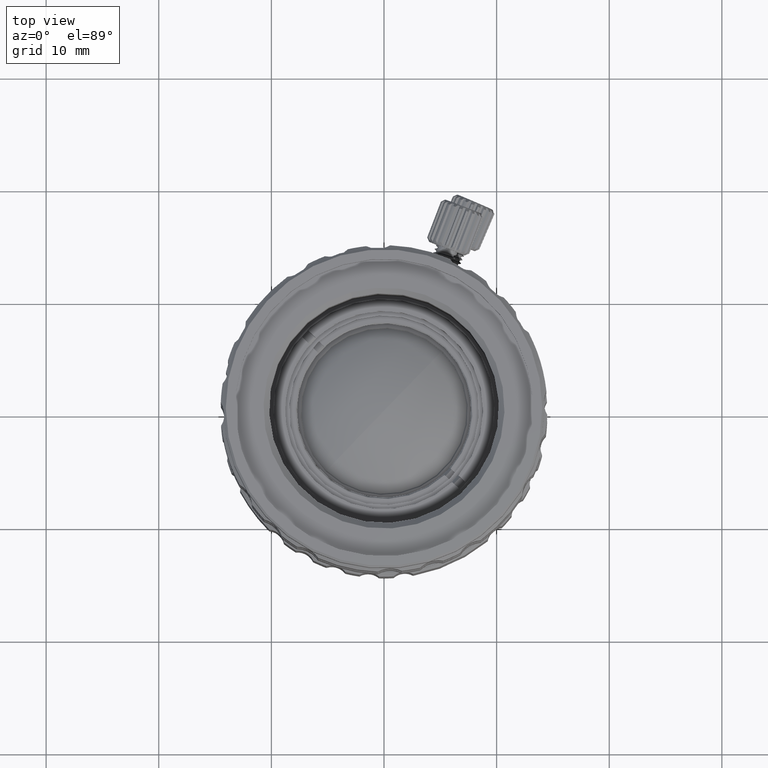
[diagram: clean part render]
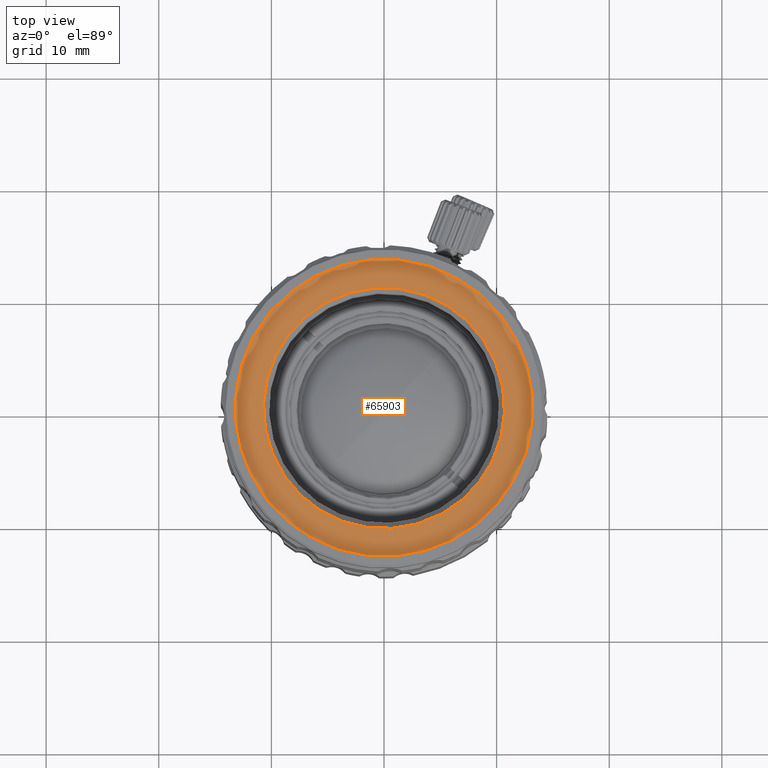
[diagram: same view with one face highlighted and labeled with its STEP entity id]
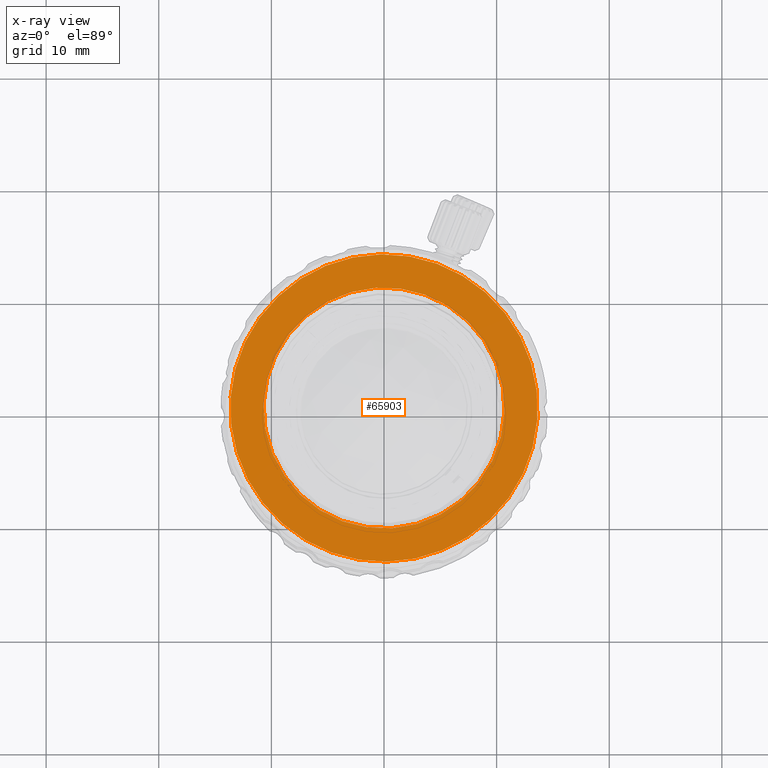
[diagram: x-ray of the same camera — body ghosted, the highlighted face saturated]
A machine part, top view. The second image highlights one B-rep face of the part: STEP entity #65903.
The next image is the same camera in x-ray: the body ghosted, the highlighted face saturated — about 0% of this face is hidden behind the body in this view.
In plain terms, the highlighted planar face has unit normal (0, 0, 1).
Its self-contained STEP definition (entity closure, byte-faithful):
#2006 = CARTESIAN_POINT ( 'NONE',  ( -2.949319707118331024, 10.28550014610863883, 43.11993545905000502 ) ) ;
#2516 = CARTESIAN_POINT ( 'NONE',  ( 0.000000000000000000, 0.000000000000000000, 43.11993545905000502 ) ) ;
#2764 = EDGE_CURVE ( 'NONE', #75610, #44852, #71857, .T. ) ;
#3057 = DIRECTION ( 'NONE',  ( 0.000000000000000000, 0.000000000000000000, -1.000000000000000000 ) ) ;
#5330 = CIRCLE ( 'NONE', #35245, 13.65000000000000036 ) ;
#5430 = EDGE_LOOP ( 'NONE', ( #51363, #42754 ) ) ;
#7056 = CIRCLE ( 'NONE', #74570, 10.69999999999999574 ) ;
#8770 = DIRECTION ( 'NONE',  ( 1.000000000000000000, 0.000000000000000000, 0.000000000000000000 ) ) ;
#10390 = ORIENTED_EDGE ( 'NONE', *, *, #13522, .F. ) ;
#13522 = EDGE_CURVE ( 'NONE', #17956, #40577, #70892, .T. ) ;
#14739 = PLANE ( 'NONE',  #74392 ) ;
#16141 = DIRECTION ( 'NONE',  ( 0.2756373558170110982, -0.9612616959383153414, 0.000000000000000000 ) ) ;
#17956 = VERTEX_POINT ( 'NONE', #64900 ) ;
#19350 = EDGE_CURVE ( 'NONE', #40577, #17956, #5330, .T. ) ;
#21253 = FACE_BOUND ( 'NONE', #5430, .T. ) ;
#21759 = EDGE_LOOP ( 'NONE', ( #22639, #10390 ) ) ;
#22639 = ORIENTED_EDGE ( 'NONE', *, *, #19350, .F. ) ;
#23903 = CARTESIAN_POINT ( 'NONE',  ( 2.949319707118332357, -10.28550014610863883, 43.11993545905000502 ) ) ;
#29151 = DIRECTION ( 'NONE',  ( 0.000000000000000000, 0.000000000000000000, 1.000000000000000000 ) ) ;
#34245 = DIRECTION ( 'NONE',  ( 0.000000000000000000, 0.000000000000000000, 1.000000000000000000 ) ) ;
#35245 = AXIS2_PLACEMENT_3D ( 'NONE', #50363, #3057, #45090 ) ;
#36816 = AXIS2_PLACEMENT_3D ( 'NONE', #39768, #29151, #16141 ) ;
#39563 = DIRECTION ( 'NONE',  ( 0.000000000000000000, 0.000000000000000000, 1.000000000000000000 ) ) ;
#39768 = CARTESIAN_POINT ( 'NONE',  ( 0.000000000000000000, 0.000000000000000000, 43.11993545905000502 ) ) ;
#39952 = DIRECTION ( 'NONE',  ( 0.2756373558170110982, -0.9612616959383153414, 0.000000000000000000 ) ) ;
#40577 = VERTEX_POINT ( 'NONE', #49924 ) ;
#42754 = ORIENTED_EDGE ( 'NONE', *, *, #2764, .F. ) ;
#44852 = VERTEX_POINT ( 'NONE', #23903 ) ;
#45090 = DIRECTION ( 'NONE',  ( 1.000000000000000000, 0.000000000000000000, 0.000000000000000000 ) ) ;
#49924 = CARTESIAN_POINT ( 'NONE',  ( -13.05355991889532952, -3.990873769465701049, 43.11993545905000502 ) ) ;
#50363 = CARTESIAN_POINT ( 'NONE',  ( 0.000000000000000000, 0.000000000000000000, 43.11993545905000502 ) ) ;
#51363 = ORIENTED_EDGE ( 'NONE', *, *, #67159, .F. ) ;
#51364 = CARTESIAN_POINT ( 'NONE',  ( 0.000000000000000000, 0.000000000000000000, 43.11993545905000502 ) ) ;
#57986 = CARTESIAN_POINT ( 'NONE',  ( 0.000000000000000000, 0.000000000000000000, 43.11993545905000502 ) ) ;
#64457 = DIRECTION ( 'NONE',  ( 0.000000000000000000, 0.000000000000000000, -1.000000000000000000 ) ) ;
#64900 = CARTESIAN_POINT ( 'NONE',  ( 13.05355991889532952, 3.990873769465702825, 43.11993545905000502 ) ) ;
#65903 = ADVANCED_FACE ( 'NONE', ( #70414, #21253 ), #14739, .T. ) ;
#67159 = EDGE_CURVE ( 'NONE', #44852, #75610, #7056, .T. ) ;
#70414 = FACE_OUTER_BOUND ( 'NONE', #21759, .T. ) ;
#70892 = CIRCLE ( 'NONE', #74751, 13.65000000000000036 ) ;
#71857 = CIRCLE ( 'NONE', #36816, 10.69999999999999574 ) ;
#74392 = AXIS2_PLACEMENT_3D ( 'NONE', #51364, #39563, #76133 ) ;
#74570 = AXIS2_PLACEMENT_3D ( 'NONE', #2516, #34245, #39952 ) ;
#74751 = AXIS2_PLACEMENT_3D ( 'NONE', #57986, #64457, #8770 ) ;
#75610 = VERTEX_POINT ( 'NONE', #2006 ) ;
#76133 = DIRECTION ( 'NONE',  ( 1.000000000000000000, 0.000000000000000000, 0.000000000000000000 ) ) ;